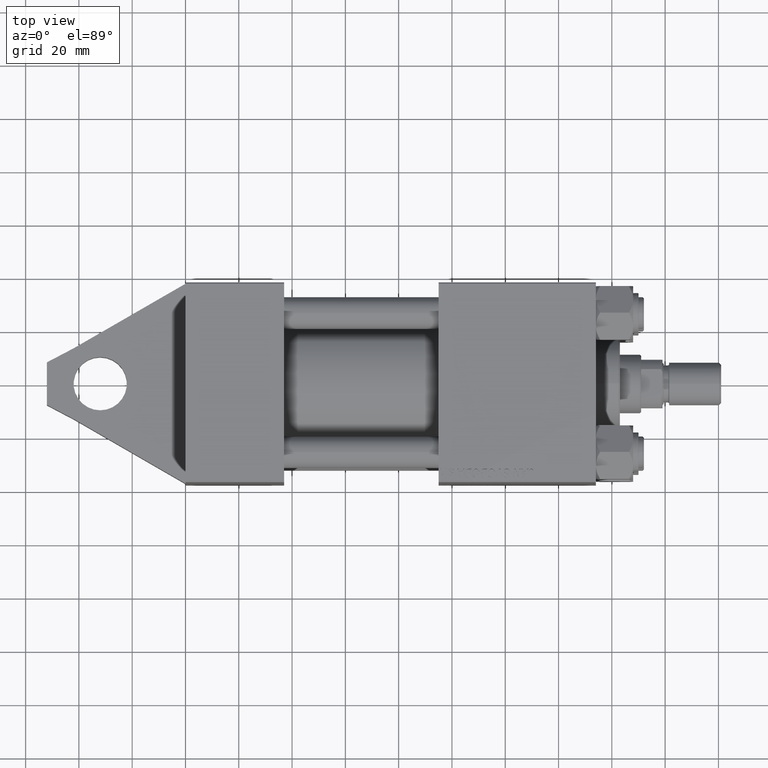
[diagram: clean part render]
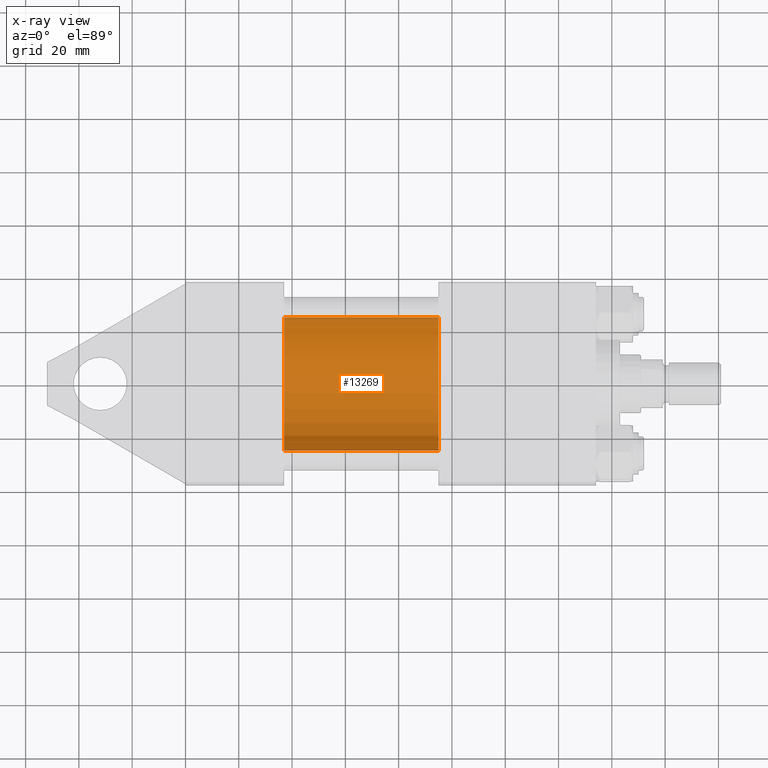
[diagram: x-ray — body ghosted, one internal face saturated and labeled with its STEP entity id]
A machine part, top view, then the same camera in x-ray: the body is ghosted and one INTERNAL B-rep face — a face not visible from any outside direction — is saturated and labeled: STEP entity #13269.
In plain terms, the highlighted cylindrical surface (partial cylindrical patch) has radius 25 mm, axis along (-1, -0, 0).
Its self-contained STEP definition (entity closure, byte-faithful):
#121 = CARTESIAN_POINT ( 'NONE',  ( 95.00000000000000000, -2.602085213965210642E-15, 0.000000000000000000 ) ) ;
#1916 = VERTEX_POINT ( 'NONE', #20515 ) ;
#4344 = DIRECTION ( 'NONE',  ( 0.000000000000000000, 0.000000000000000000, -1.000000000000000000 ) ) ;
#4969 = VECTOR ( 'NONE', #42409, 1000.000000000000000 ) ;
#5589 = CYLINDRICAL_SURFACE ( 'NONE', #17897, 25.00000000000000000 ) ;
#6017 = DIRECTION ( 'NONE',  ( 0.000000000000000000, 0.000000000000000000, -1.000000000000000000 ) ) ;
#6277 = FACE_OUTER_BOUND ( 'NONE', #33543, .T. ) ;
#7171 = VERTEX_POINT ( 'NONE', #38997 ) ;
#7539 = EDGE_CURVE ( 'NONE', #26826, #7171, #40218, .T. ) ;
#7634 = DIRECTION ( 'NONE',  ( 1.000000000000000000, 0.000000000000000000, 0.000000000000000000 ) ) ;
#7922 = AXIS2_PLACEMENT_3D ( 'NONE', #12829, #27168, #6017 ) ;
#7933 = CARTESIAN_POINT ( 'NONE',  ( 37.00000000000000000, -2.602085213965210642E-15, 25.00000000000000000 ) ) ;
#8441 = EDGE_CURVE ( 'NONE', #1916, #46131, #31984, .T. ) ;
#8530 = EDGE_CURVE ( 'NONE', #1916, #26826, #10182, .T. ) ;
#9565 = CARTESIAN_POINT ( 'NONE',  ( 95.00000000000000000, -2.602085213965210642E-15, 0.000000000000000000 ) ) ;
#10182 = LINE ( 'NONE', #27586, #4969 ) ;
#11214 = ORIENTED_EDGE ( 'NONE', *, *, #40554, .T. ) ;
#12630 = DIRECTION ( 'NONE',  ( -1.000000000000000000, -0.000000000000000000, -0.000000000000000000 ) ) ;
#12829 = CARTESIAN_POINT ( 'NONE',  ( 37.00000000000000000, -2.602085213965210642E-15, 0.000000000000000000 ) ) ;
#13269 = ADVANCED_FACE ( 'NONE', ( #6277 ), #5589, .F. ) ;
#14175 = ORIENTED_EDGE ( 'NONE', *, *, #8441, .T. ) ;
#16862 = DIRECTION ( 'NONE',  ( 0.000000000000000000, 0.000000000000000000, 1.000000000000000000 ) ) ;
#16934 = CARTESIAN_POINT ( 'NONE',  ( 95.00000000000000000, 4.595317839031718093E-16, -25.00000000000000000 ) ) ;
#17470 = DIRECTION ( 'NONE',  ( -1.000000000000000000, -0.000000000000000000, -0.000000000000000000 ) ) ;
#17897 = AXIS2_PLACEMENT_3D ( 'NONE', #9565, #12630, #16862 ) ;
#20515 = CARTESIAN_POINT ( 'NONE',  ( 95.00000000000000000, -2.602085213965210642E-15, 25.00000000000000000 ) ) ;
#22324 = LINE ( 'NONE', #36681, #33453 ) ;
#26194 = ORIENTED_EDGE ( 'NONE', *, *, #7539, .F. ) ;
#26826 = VERTEX_POINT ( 'NONE', #7933 ) ;
#27168 = DIRECTION ( 'NONE',  ( 1.000000000000000000, 0.000000000000000000, 0.000000000000000000 ) ) ;
#27586 = CARTESIAN_POINT ( 'NONE',  ( 95.00000000000000000, -2.602085213965210642E-15, 25.00000000000000000 ) ) ;
#29733 = AXIS2_PLACEMENT_3D ( 'NONE', #121, #7634, #4344 ) ;
#31984 = CIRCLE ( 'NONE', #29733, 25.00000000000000000 ) ;
#33453 = VECTOR ( 'NONE', #17470, 1000.000000000000000 ) ;
#33543 = EDGE_LOOP ( 'NONE', ( #14175, #11214, #26194, #34684 ) ) ;
#34684 = ORIENTED_EDGE ( 'NONE', *, *, #8530, .F. ) ;
#36681 = CARTESIAN_POINT ( 'NONE',  ( 95.00000000000000000, 4.595317839031718093E-16, -25.00000000000000000 ) ) ;
#38997 = CARTESIAN_POINT ( 'NONE',  ( 37.00000000000000000, 4.595317839031718093E-16, -25.00000000000000000 ) ) ;
#40218 = CIRCLE ( 'NONE', #7922, 25.00000000000000000 ) ;
#40554 = EDGE_CURVE ( 'NONE', #46131, #7171, #22324, .T. ) ;
#42409 = DIRECTION ( 'NONE',  ( -1.000000000000000000, -0.000000000000000000, -0.000000000000000000 ) ) ;
#46131 = VERTEX_POINT ( 'NONE', #16934 ) ;